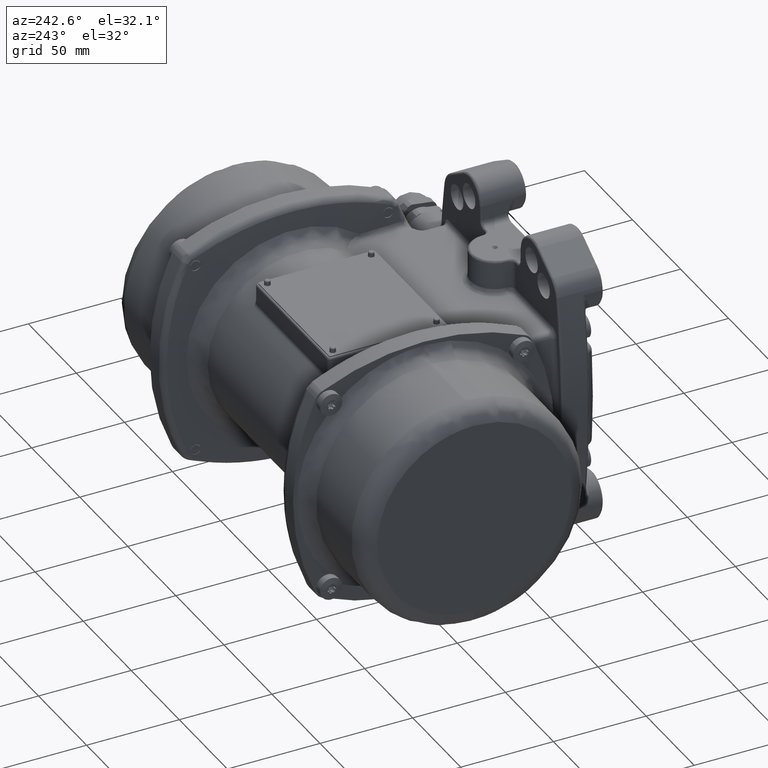
[diagram: clean part render]
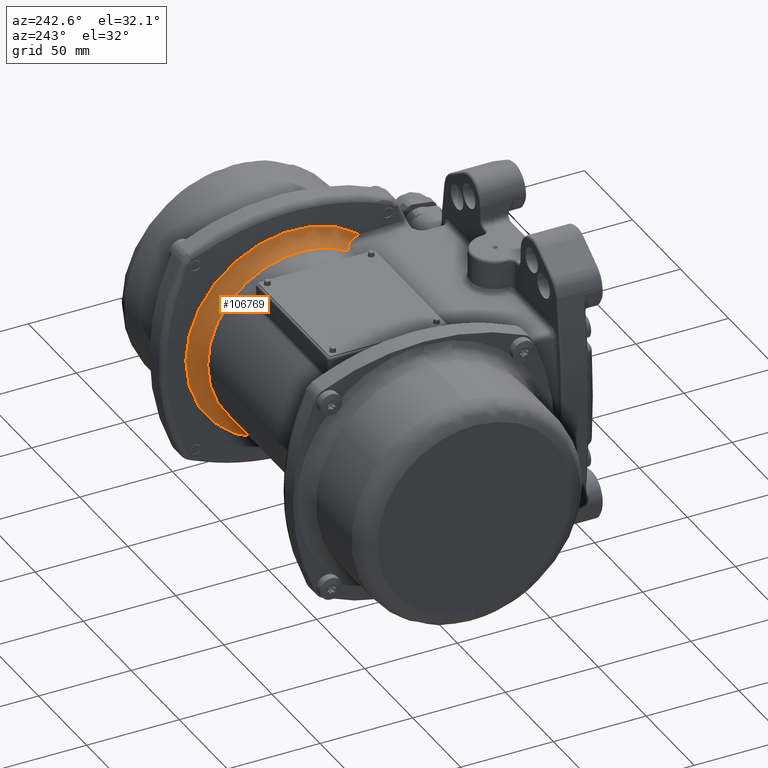
[diagram: same view with one face highlighted and labeled with its STEP entity id]
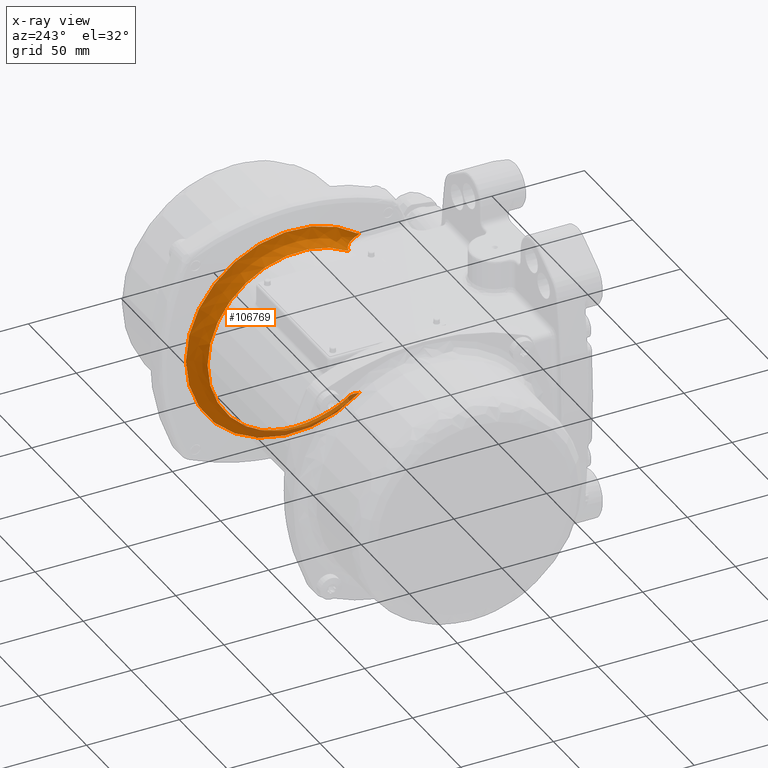
[diagram: x-ray of the same camera — body ghosted, the highlighted face saturated]
A machine part, auxiliary view. The second image highlights one B-rep face of the part: STEP entity #106769.
The next image is the same camera in x-ray: the body ghosted, the highlighted face saturated — about 10% of this face is hidden behind the body in this view.
In plain terms, the highlighted face is a freeform B-spline surface patch.
Its self-contained STEP definition (entity closure, byte-faithful):
#10 = CARTESIAN_POINT ( 'NONE',  ( 61.59437428924439900, 71.03146900100659900, -44.36965410314515200 ) ) ;
#120 = CARTESIAN_POINT ( 'NONE',  ( 58.32792740399371900, 110.2308900725721900, 70.04264909392823300 ) ) ;
#2391 = CARTESIAN_POINT ( 'NONE',  ( 61.58776230303639900, 158.0934678125320800, -52.38078838976625900 ) ) ;
#3662 = CARTESIAN_POINT ( 'NONE',  ( 58.47223663386521500, 76.65593697187948400, 42.95406005526755400 ) ) ;
#4627 = CARTESIAN_POINT ( 'NONE',  ( 61.58776230303639200, 158.0934678125320500, -4.163336342344337700E-014 ) ) ;
#7050 = CARTESIAN_POINT ( 'NONE',  ( 61.82296026901550300, 68.92222669396740300, 44.87763145747879900 ) ) ;
#7891 = CARTESIAN_POINT ( 'NONE',  ( 53.83392399097889600, 78.58490566037730200, -42.45283018867925100 ) ) ;
#9197 = CARTESIAN_POINT ( 'NONE',  ( 58.32792740399371900, 110.2308900725720800, -70.04264909392826200 ) ) ;
#10648 = B_SPLINE_CURVE_WITH_KNOTS ( 'NONE', 3,
 ( #125730, #100592, #82330, #89132, #137178, #20527, #25135, #79963, #102839, #31967, #36541, #93642, #118790, #105084, #114303, #27487, #59424, #10, #107447, #132694 ),
 .UNSPECIFIED., .F., .F.,
 ( 4, 2, 2, 2, 2, 2, 2, 2, 2, 4 ),
 ( 0.0000000000000000000, 0.06250000000000029100, 0.1249999999999995600, 0.2500000000000000600, 0.3125000000000002200, 0.3749999999999996100, 0.5000000000000000000, 0.6250000000000000000, 0.7500000000000000000, 1.000000000000000000 ),
 .UNSPECIFIED. ) ;
#11529 = CARTESIAN_POINT ( 'NONE',  ( 58.32792740399371200, 72.63266120151411100, 38.10978062261742800 ) ) ;
#13290 = DIRECTION ( 'NONE',  ( 1.000000000000000000, -1.224646799147352000E-016, 1.019723305085167900E-032 ) ) ;
#13771 = CARTESIAN_POINT ( 'NONE',  ( 61.82296026901551800, 162.5813123500565500, -4.163336342344337000E-014 ) ) ;
#15050 = CARTESIAN_POINT ( 'NONE',  ( 54.53011820993098300, 78.55410302442108200, 42.46088443013095300 ) ) ;
#15604 = VERTEX_POINT ( 'NONE', #7891 ) ;
#19663 = CARTESIAN_POINT ( 'NONE',  ( 55.20451890945810200, 78.43713010014467100, 42.49144643882230100 ) ) ;
#20527 = CARTESIAN_POINT ( 'NONE',  ( 56.47250582568090500, 78.02635298816859700, -42.59863123774655200 ) ) ;
#20652 = CARTESIAN_POINT ( 'NONE',  ( 61.82296026901550300, 111.0240303027516500, -80.66295310605779900 ) ) ;
#21932 = CARTESIAN_POINT ( 'NONE',  ( 57.01934645485161500, 77.71568768648589300, 42.67945558976905600 ) ) ;
#24646 = EDGE_CURVE ( 'NONE', #133265, #97102, #36359, .T. ) ;
#25135 = CARTESIAN_POINT ( 'NONE',  ( 57.03889949359039900, 77.72414534264359500, -42.67734574976775300 ) ) ;
#27487 = CARTESIAN_POINT ( 'NONE',  ( 60.93360986906860400, 73.02984128949800900, -43.87497986683059300 ) ) ;
#28647 = CARTESIAN_POINT ( 'NONE',  ( 61.82296026901550300, 68.92222669396740300, -44.87763145747879900 ) ) ;
#29686 =( BOUNDED_SURFACE ( )  B_SPLINE_SURFACE ( 3, 3, ( 
 ( #61935, #139713, #52777, #135034, #102856, #96029, #48125 ),
 ( #61771, #9197, #123513, #125749, #64024, #120, #11529 ),
 ( #84645, #130426, #2391, #4627, #84558, #41201, #100610 ),
 ( #121149, #20652, #38936, #13771, #67637, #113389, #60816 ) ),
 .UNSPECIFIED., .F., .F., .F. ) 
 B_SPLINE_SURFACE_WITH_KNOTS ( ( 4, 4 ),
 ( 4, 3, 4 ),
 ( 0.0000000000000000000, 1.000000000000000000 ),
 ( 0.0000000000000000000, 0.5000000000000000000, 1.000000000000000000 ),
 .UNSPECIFIED. ) 
 GEOMETRIC_REPRESENTATION_ITEM ( )  RATIONAL_B_SPLINE_SURFACE ( (
 ( 1.000000000000000000, 0.6132750828417626900, 0.6132750828417626900, 1.000000000000000000, 0.6132750828417626900, 0.6132750828417626900, 1.000000000000000000),
 ( 0.8169162473415214600, 0.5009943792631534900, 0.5009943792631534900, 0.8169162473415214600, 0.5009943792631534900, 0.5009943792631534900, 0.8169162473415214600),
 ( 0.8169162473415214600, 0.5009943792631534900, 0.5009943792631534900, 0.8169162473415214600, 0.5009943792631534900, 0.5009943792631534900, 0.8169162473415214600),
 ( 1.000000000000000000, 0.6132750828417626900, 0.6132750828417626900, 1.000000000000000000, 0.6132750828417626900, 0.6132750828417626900, 1.000000000000000000) ) ) 
 REPRESENTATION_ITEM ( '' )  SURFACE ( )  );
#31598 = DIRECTION ( 'NONE',  ( -2.410120096507463600E-016, -1.000000000000000000, 8.326672684688670400E-017 ) ) ;
#31967 = CARTESIAN_POINT ( 'NONE',  ( 58.46394531616449800, 76.64563230077860100, -42.95657725826605100 ) ) ;
#34057 = DIRECTION ( 'NONE',  ( -1.387778780781445700E-016, -1.000000000000000000, 8.326672684688669100E-017 ) ) ;
#34372 = EDGE_CURVE ( 'NONE', #126325, #15604, #127999, .T. ) ;
#36359 = CIRCLE ( 'NONE', #138764, 57.58131235005650000 ) ;
#36541 = CARTESIAN_POINT ( 'NONE',  ( 58.67370020536790100, 76.44424983253090000, -43.00848624807130000 ) ) ;
#38936 = CARTESIAN_POINT ( 'NONE',  ( 61.82296026901551000, 162.5813123500565200, -56.80839209944049600 ) ) ;
#41201 = CARTESIAN_POINT ( 'NONE',  ( 61.58776230303639200, 110.5545218739800800, 74.37614270345918000 ) ) ;
#48125 = CARTESIAN_POINT ( 'NONE',  ( 53.83392399097888900, 72.63266120151406800, 38.10978062261742800 ) ) ;
#49301 = CARTESIAN_POINT ( 'NONE',  ( 59.26052722357580600, 75.82661901779391700, 43.16727623175094000 ) ) ;
#52777 = CARTESIAN_POINT ( 'NONE',  ( 53.83392399097890300, 155.0000000000000000, -49.32884453386785100 ) ) ;
#53891 = CARTESIAN_POINT ( 'NONE',  ( 54.18591027879389100, 78.58490565655968400, 42.45283018630384900 ) ) ;
#58472 = CARTESIAN_POINT ( 'NONE',  ( 61.59462941770230100, 71.03382023719800000, 44.36910031482795300 ) ) ;
#59424 = CARTESIAN_POINT ( 'NONE',  ( 61.12377022415439900, 72.53660624124640300, -43.99782247016634800 ) ) ;
#60697 = CARTESIAN_POINT ( 'NONE',  ( 60.46922145526428900, 74.01676921635720400, 43.62740789544424300 ) ) ;
#60816 = CARTESIAN_POINT ( 'NONE',  ( 61.82296026901550300, 67.72492309408555400, 43.88822363246135400 ) ) ;
#61771 = CARTESIAN_POINT ( 'NONE',  ( 58.32792740399371200, 72.63266120151404000, -38.10978062261740000 ) ) ;
#61935 = CARTESIAN_POINT ( 'NONE',  ( 53.83392399097888900, 72.63266120151402600, -38.10978062261740000 ) ) ;
#64024 = CARTESIAN_POINT ( 'NONE',  ( 58.32792740399372600, 155.0000000000000000, 49.32884453386776600 ) ) ;
#64969 = CARTESIAN_POINT ( 'NONE',  ( 53.83392399097889600, 78.58490566037740200, 42.45283018867925100 ) ) ;
#65290 = CARTESIAN_POINT ( 'NONE',  ( 61.11883423353590000, 72.55078529503170200, 43.99430591386480700 ) ) ;
#67517 = CARTESIAN_POINT ( 'NONE',  ( 61.77736816997840200, 69.99298648011290400, 44.62222179939475800 ) ) ;
#67637 = CARTESIAN_POINT ( 'NONE',  ( 61.82296026901551000, 162.5813123500565500, 56.80839209944042500 ) ) ;
#79001 = CARTESIAN_POINT ( 'NONE',  ( 56.16012585861020100, 78.13430980729346200, 42.57046939432660100 ) ) ;
#79705 = EDGE_CURVE ( 'NONE', #97102, #126325, #90971, .T. ) ;
#79963 = CARTESIAN_POINT ( 'NONE',  ( 57.78677548028389300, 77.21044578458870000, -42.81057371672015000 ) ) ;
#82075 = CARTESIAN_POINT ( 'NONE',  ( 53.83392399097889600, 105.0000000000000000, -4.496957187030429500E-015 ) ) ;
#82330 = CARTESIAN_POINT ( 'NONE',  ( 54.53011725914740300, 78.55412123925668800, -42.46087967618059600 ) ) ;
#83130 = ORIENTED_EDGE ( 'NONE', *, *, #79705, .F. ) ;
#84106 = CARTESIAN_POINT ( 'NONE',  ( 61.82296026901550300, 105.0000000000000000, -4.496957187030429500E-015 ) ) ;
#84558 = CARTESIAN_POINT ( 'NONE',  ( 61.58776230303639900, 158.0934678125321400, 52.38078838976618100 ) ) ;
#84645 = CARTESIAN_POINT ( 'NONE',  ( 61.58776230303639200, 70.63011478650528800, -40.46760821659194800 ) ) ;
#85546 = ORIENTED_EDGE ( 'NONE', *, *, #34372, .F. ) ;
#86550 = DIRECTION ( 'NONE',  ( -1.000000000000000000, 1.224646799147352000E-016, -1.019723305085167900E-032 ) ) ;
#89132 = CARTESIAN_POINT ( 'NONE',  ( 55.20514804962680700, 78.43700291080139700, -42.49147966499479900 ) ) ;
#90971 = B_SPLINE_CURVE_WITH_KNOTS ( 'NONE', 3,
 ( #138594, #67517, #58472, #65290, #136214, #60697, #106484, #97295, #49301, #3662, #140833, #92668, #21932, #129317, #79001, #115605, #19663, #15050, #53891, #133975 ),
 .UNSPECIFIED., .F., .F.,
 ( 4, 2, 2, 2, 2, 2, 2, 2, 2, 4 ),
 ( 0.0000000000000000000, 0.2499999999999990800, 0.3749999999999995600, 0.5000000000000000000, 0.6249999999999995600, 0.7500000000000000000, 0.8124999999999997800, 0.8750000000000000000, 0.9375000000000000000, 1.000000000000000000 ),
 .UNSPECIFIED. ) ;
#92668 = CARTESIAN_POINT ( 'NONE',  ( 57.28676916717801500, 77.55381597833819300, 42.72152038871556100 ) ) ;
#93642 = CARTESIAN_POINT ( 'NONE',  ( 59.26376952049210400, 75.82267628312270300, -43.16828623737065100 ) ) ;
#96029 = CARTESIAN_POINT ( 'NONE',  ( 53.83392399097889600, 110.2308900725721500, 70.04264909392823300 ) ) ;
#97102 = VERTEX_POINT ( 'NONE', #7050 ) ;
#97295 = CARTESIAN_POINT ( 'NONE',  ( 59.60303942420408400, 75.38942377242132400, 43.27913632421244500 ) ) ;
#100592 = CARTESIAN_POINT ( 'NONE',  ( 54.18578809745339700, 78.58490565667770500, -42.45283018637724800 ) ) ;
#100610 = CARTESIAN_POINT ( 'NONE',  ( 61.58776230303639200, 70.63011478650533100, 40.46760821659198400 ) ) ;
#102014 = ORIENTED_EDGE ( 'NONE', *, *, #24646, .F. ) ;
#102581 = AXIS2_PLACEMENT_3D ( 'NONE', #82075, #86550, #34057 ) ;
#102839 = CARTESIAN_POINT ( 'NONE',  ( 58.02083396963340100, 77.02830358973231700, -42.85773060669075100 ) ) ;
#102856 = CARTESIAN_POINT ( 'NONE',  ( 53.83392399097890300, 155.0000000000000300, 49.32884453386780900 ) ) ;
#105084 = CARTESIAN_POINT ( 'NONE',  ( 60.21338938439810600, 74.47492739932738500, -43.51162573017185100 ) ) ;
#106139 = EDGE_CURVE ( 'NONE', #15604, #133265, #10648, .T. ) ;
#106484 = CARTESIAN_POINT ( 'NONE',  ( 60.20711272088109200, 74.48512519736580400, 43.50904045496879000 ) ) ;
#106769 = ADVANCED_FACE ( 'NONE', ( #135103 ), #29686, .F. ) ;
#107447 = CARTESIAN_POINT ( 'NONE',  ( 61.77731003216030100, 69.99435188416838100, -44.62189610785485200 ) ) ;
#113389 = CARTESIAN_POINT ( 'NONE',  ( 61.82296026901550300, 111.0240303027517700, 80.66295310605775600 ) ) ;
#114303 = CARTESIAN_POINT ( 'NONE',  ( 60.47898062679470100, 73.99841803569479700, -43.63203477930920100 ) ) ;
#114728 = EDGE_LOOP ( 'NONE', ( #139708, #85546, #83130, #102014 ) ) ;
#115605 = CARTESIAN_POINT ( 'NONE',  ( 55.53670338799189200, 78.34966457190496700, 42.51429139092455500 ) ) ;
#118790 = CARTESIAN_POINT ( 'NONE',  ( 59.60607386245950300, 75.38567064752180600, -43.28009774665869700 ) ) ;
#121149 = CARTESIAN_POINT ( 'NONE',  ( 61.82296026901550300, 67.72492309408549700, -43.88822363246131200 ) ) ;
#123513 = CARTESIAN_POINT ( 'NONE',  ( 58.32792740399372600, 154.9999999999999400, -49.32884453386785100 ) ) ;
#125730 = CARTESIAN_POINT ( 'NONE',  ( 53.83392399097889600, 78.58490566037730200, -42.45283018867925100 ) ) ;
#125749 = CARTESIAN_POINT ( 'NONE',  ( 58.32792740399371200, 154.9999999999999700, -4.163336342344337700E-014 ) ) ;
#126325 = VERTEX_POINT ( 'NONE', #64969 ) ;
#127999 = CIRCLE ( 'NONE', #102581, 50.00000000000000000 ) ;
#129317 = CARTESIAN_POINT ( 'NONE',  ( 56.45540662645831300, 78.00605492794868200, 42.60389797980735700 ) ) ;
#130426 = CARTESIAN_POINT ( 'NONE',  ( 61.58776230303639200, 110.5545218739799800, -74.37614270345920900 ) ) ;
#132694 = CARTESIAN_POINT ( 'NONE',  ( 61.82296026901550300, 68.92222669396740300, -44.87763145747879900 ) ) ;
#133265 = VERTEX_POINT ( 'NONE', #28647 ) ;
#133975 = CARTESIAN_POINT ( 'NONE',  ( 53.83392399097889600, 78.58490566037740200, 42.45283018867925100 ) ) ;
#135034 = CARTESIAN_POINT ( 'NONE',  ( 53.83392399097890300, 155.0000000000000000, -2.775557561562891400E-014 ) ) ;
#135103 = FACE_OUTER_BOUND ( 'NONE', #114728, .T. ) ;
#136214 = CARTESIAN_POINT ( 'NONE',  ( 60.92496772306779500, 73.05059691164899500, 43.86979676431220600 ) ) ;
#137178 = CARTESIAN_POINT ( 'NONE',  ( 55.53700974743690500, 78.34958293358511100, -42.51431271372450000 ) ) ;
#138594 = CARTESIAN_POINT ( 'NONE',  ( 61.82296026901550300, 68.92222669396740300, 44.87763145747879900 ) ) ;
#138764 = AXIS2_PLACEMENT_3D ( 'NONE', #84106, #13290, #31598 ) ;
#139708 = ORIENTED_EDGE ( 'NONE', *, *, #106139, .F. ) ;
#139713 = CARTESIAN_POINT ( 'NONE',  ( 53.83392399097889600, 110.2308900725720500, -70.04264909392823300 ) ) ;
#140833 = CARTESIAN_POINT ( 'NONE',  ( 58.03511440645930700, 77.04001296552408500, 42.85477601627145100 ) ) ;